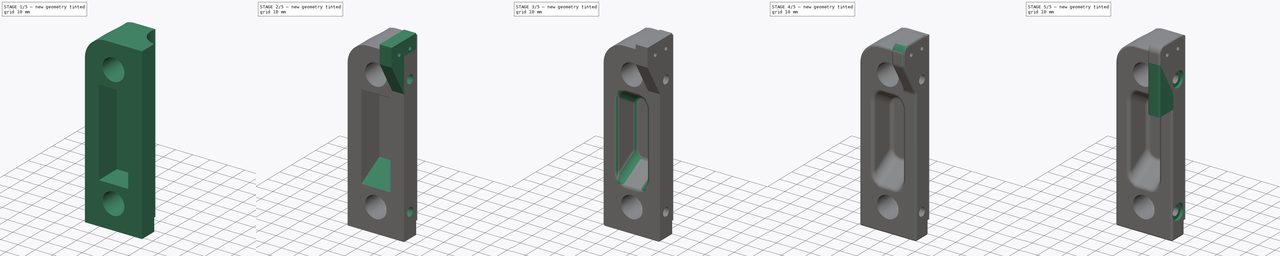
[diagram: build sequence overview — one tinted view per stage of 5, left to right]
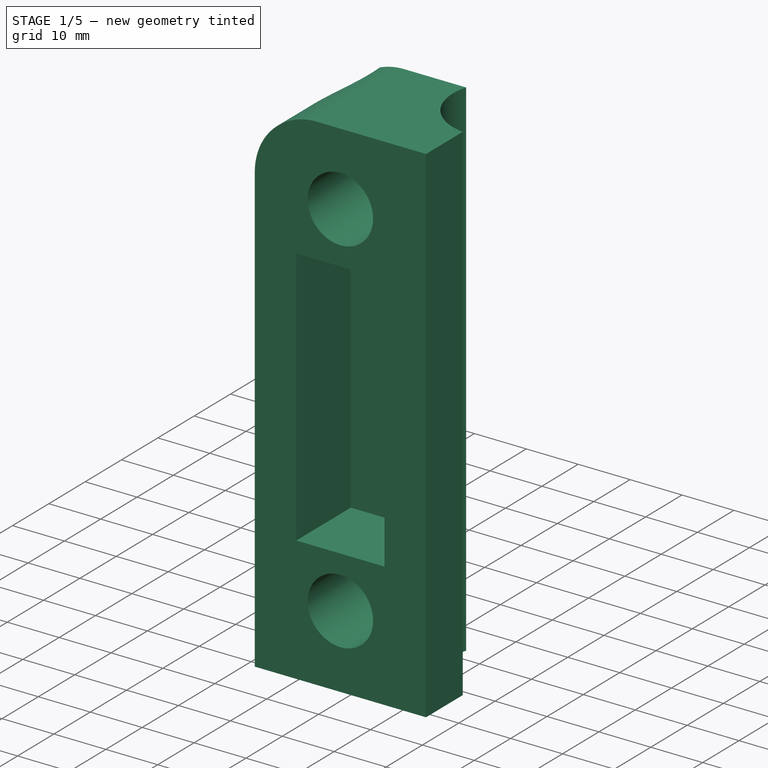
[diagram: stage 1 of 5 — iso view after this stage's code; geometry added in this stage tinted green]
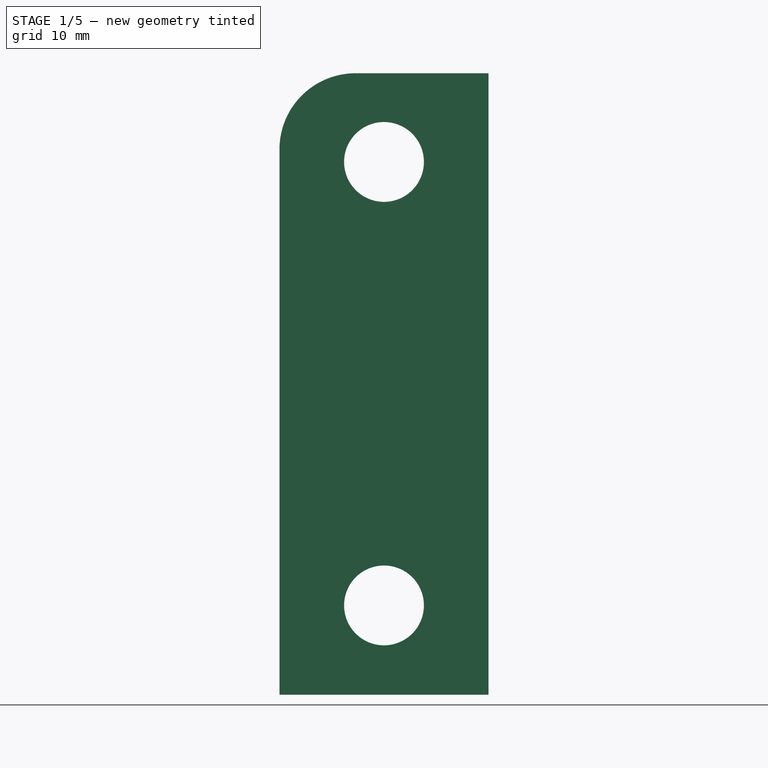
[diagram: stage 1 of 5 — front view after this stage's code; geometry added in this stage tinted green]
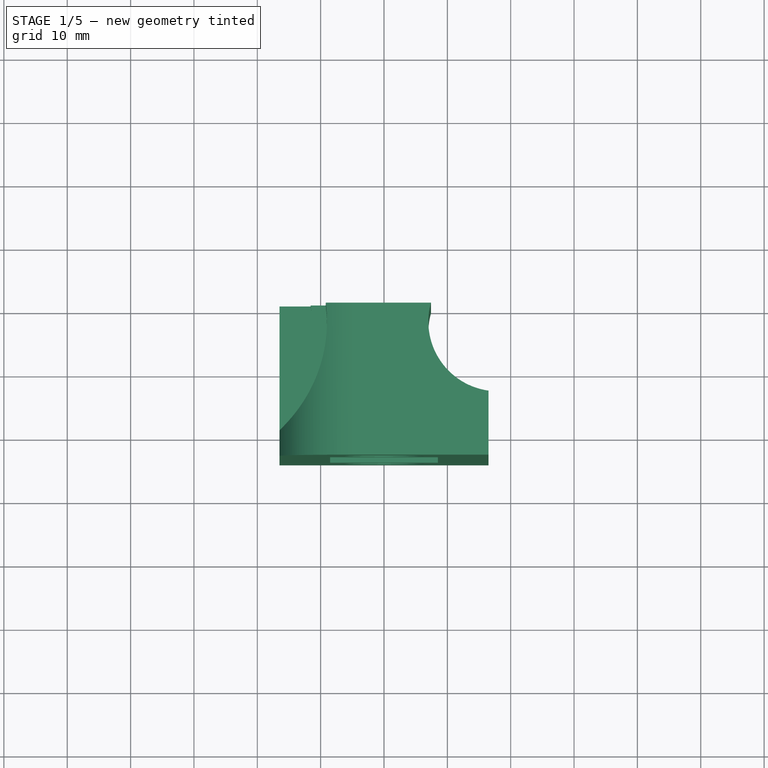
[diagram: stage 1 of 5 — top view after this stage's code; geometry added in this stage tinted green]
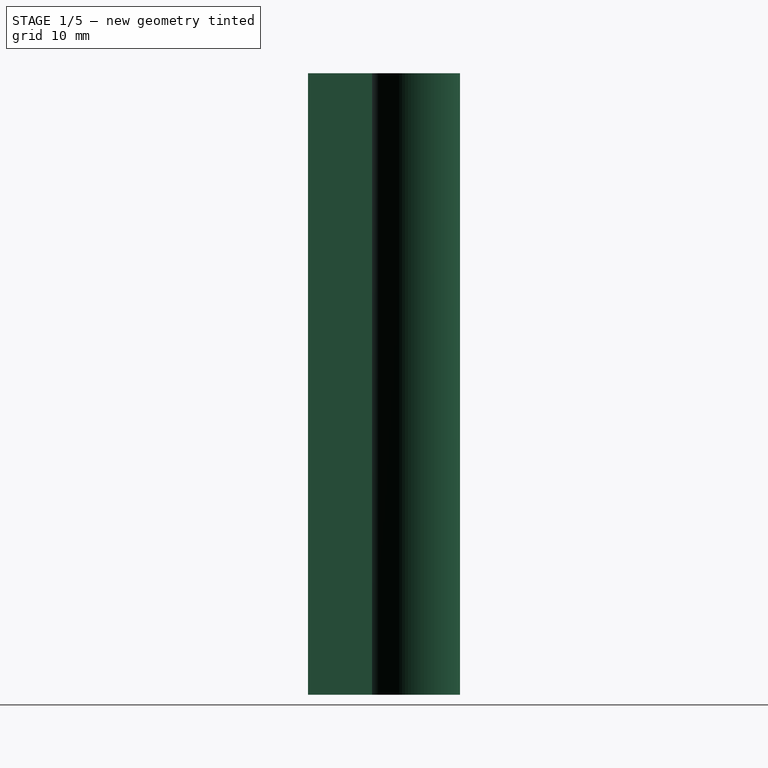
[diagram: stage 1 of 5 — right view after this stage's code; geometry added in this stage tinted green]
FCSTD DOCUMENT  (FreeCAD 0.16R6721 (Git))
Label: carriage_motor_z
License: All rights reserved
LicenseURL: http://en.wikipedia.org/wiki/All_rights_reserved
objects: Sketcher::SketchObject×16, PartDesign::Fillet×11, PartDesign::Pocket×8, PartDesign::Pad×5
note: 53 computed .brp shape members not serialized (recipe doc carries the construction recipe); baked Part::Feature solids carry a one-line shape summary decoded from their .brp

FEATURE [Sketcher::SketchObject] Sketch
  Placement = pos=(0,0,0) rot=(1,0,0;1.5708rad)
  sketch-geometry (9):
    g0: LineSegment [constr] StartX=-105 StartY=0 StartZ=0 EndX=105 EndY=0 EndZ=0
    g1: LineSegment [constr] StartX=0 StartY=40 StartZ=0 EndX=0 EndY=-30 EndZ=0
    g2: Circle CenterX=0 CenterY=40 CenterZ=0 NormalX=0 NormalY=0 NormalZ=1 Radius=6.3
    g3: Circle CenterX=0 CenterY=-30 CenterZ=0 NormalX=0 NormalY=0 NormalZ=1 Radius=6.3
    g4: LineSegment StartX=-4.49629 StartY=54 StartZ=0 EndX=16.5 EndY=54 EndZ=0
    g5: LineSegment StartX=16.5 StartY=54 StartZ=0 EndX=16.5 EndY=-44.1 EndZ=0
    g6: LineSegment StartX=16.5 StartY=-44.1 StartZ=0 EndX=-16.5 EndY=-44.1 EndZ=0
    g7: LineSegment StartX=-16.5 StartY=-44.1 StartZ=0 EndX=-16.5 EndY=41.9963 EndZ=0
    g8: ArcOfCircle CenterX=-4.49629 CenterY=41.9963 CenterZ=0 NormalX=0 NormalY=0 NormalZ=1 Radius=12.0037 StartAngle=1.5708 EndAngle=3.14159
  constraints (25):
    c: Horizontal(g0)
    c: Vertical(g1)
    c: PointOnObject(g-1,g1)
    c: PointOnObject(g-1,g0)
    c: DistanceY(g1) = -70
    c: DistanceY(g-1,g1) = -30
    c: Coincident(g1,g2)
    c: Coincident(g1,g3)
    c: Radius(g2) = 6.3
    c: Equal(g3,g2)
    c: Horizontal(g4)
    c: Horizontal(g6)
    c: Vertical(g5)
    c: Vertical(g7)
    c: Distance(g0) = 210
    c: DistanceX(g-1,g0) = -105
    c: Tangent(g4,g8) = 1.5708
    c: Tangent(g7,g8) = 1.5708
    c: DistanceX(g1,g5) = 16.5
    c: DistanceX(g5,g7) = -33
    c: DistanceY(g-1,g4) = 54
    c: DistanceY(g1,g6) = -14.1
    c: Coincident(g5,g6)
    c: Coincident(g6,g7)
    c: Coincident(g4,g5)
FEATURE [PartDesign::Pad] Pad
  Length = 24
  Length2 = 100
  Placement = pos=(0,0,0) rot=(1,0,0;1.5708rad)
  Sketch = -> Sketch
  Type = 0
FEATURE [Sketcher::SketchObject] Sketch001
  Placement = pos=(0,-24,0) rot=(1,0,0;1.5708rad)
  Support = -> Pad [Face9]
  sketch-geometry (6):
    g0: LineSegment StartX=-8.5 StartY=-20 StartZ=0 EndX=-8.5 EndY=30 EndZ=0
    g1: LineSegment StartX=8.5 StartY=30 StartZ=0 EndX=8.5 EndY=-20 EndZ=0
    g2: LineSegment StartX=-8.5 StartY=-20 StartZ=0 EndX=8.5 EndY=-20 EndZ=0
    g3: LineSegment [constr] StartX=-35 StartY=40 StartZ=0 EndX=35 EndY=40 EndZ=0
    g4: LineSegment [constr] StartX=-35 StartY=-30 StartZ=0 EndX=35 EndY=-30 EndZ=0
    g5: LineSegment StartX=-8.5 StartY=30 StartZ=0 EndX=8.5 EndY=30 EndZ=0
  constraints (20):
    c: Vertical(g0)
    c: Distance(g-1,g0) = 8.5
    c: Horizontal(g2)
    c: Horizontal(g3)
    c: DistanceY(g-1,g3) = 40
    c: DistanceX(g-1,g3) = -35
    c: DistanceX(g3) = 70
    c: Horizontal(g4)
    c: DistanceY(g-1,g4) = -30
    c: DistanceX(g-1,g4) = 35
    c: DistanceX(g4) = 70
    c: Vertical(g1)
    c: Horizontal(g5)
    c: DistanceX(g0,g1) = 17
    c: DistanceY(g3,g5) = -10
    c: DistanceY(g4,g2) = 10
    c: Coincident(g0,g5)
    c: Coincident(g1,g5)
    c: Coincident(g1,g2)
    c: Coincident(g0,g2)
FEATURE [Sketcher::SketchObject] Sketch008
  Placement = pos=(0,0,62.5) rot=(0,0,1;3.14159rad)
  sketch-geometry (3):
    g0: LineSegment [constr] StartX=56.2 StartY=28.8972 StartZ=0 EndX=56.2 EndY=19.8972 EndZ=0
    g1: Circle CenterX=56.2 CenterY=28.8972 CenterZ=0 NormalX=0 NormalY=0 NormalZ=1 Radius=1.2
    g2: Circle CenterX=56.2 CenterY=19.8972 CenterZ=0 NormalX=0 NormalY=0 NormalZ=1 Radius=1.2
  constraints (6):
    c: Vertical(g0)
    c: DistanceY(g0) = -9
    c: Coincident(g0,g2)
    c: Coincident(g0,g1)
    c: Radius(g1) = 1.2
    c: Equal(g1,g2)
FEATURE [PartDesign::Pocket] Pocket
  Length = 15
  Placement = pos=(0,0,0) rot=(1,0,0;1.5708rad)
  Sketch = -> Sketch001
  Type = 0
FEATURE [Sketcher::SketchObject] Sketch002
  Placement = pos=(0,0,54) rot=(0,0,1;3.14159rad)
  Support = -> Pocket [Face1]
  sketch-geometry (1):
    g0: Circle CenterX=-18 CenterY=3 CenterZ=0 NormalX=0 NormalY=0 NormalZ=1 Radius=11
  constraints (3):
    c: DistanceX(g-1,g0) = -18
    c: Radius(g0) = 11
    c: DistanceY(g-1,g0) = 3
FEATURE [PartDesign::Pocket] Pocket001
  Length = 5
  Placement = pos=(0,0,0) rot=(1,0,0;1.5708rad)
  Sketch = -> Sketch002
  Type = 1
FEATURE [Sketcher::SketchObject] Sketch003
  Placement = pos=(0,0,54) rot=(0,0,1;3.14159rad)
  Support = -> Pocket001 [Face1]
  sketch-geometry (2):
    g0: Circle CenterX=32 CenterY=3 CenterZ=0 NormalX=0 NormalY=0 NormalZ=1 Radius=23
    g1: LineSegment StartX=0 StartY=0 StartZ=0 EndX=0 EndY=90.0562 EndZ=0
  constraints (5):
    c: Vertical(g1)
    c: Coincident(g1,g-1)
    c: DistanceY(g-1,g0) = 3
    c: DistanceX(g-1,g0) = 32
    c: Radius(g0) = 23
FEATURE [PartDesign::Pocket] Pocket002
  Length = 26
  Placement = pos=(0,0,0) rot=(1,0,0;1.5708rad)
  Sketch = -> Sketch003
  Type = 0
FEATURE [Sketcher::SketchObject] Sketch004
  Placement = pos=(0,0,28) rot=(0,0,1;3.14159rad)
  Support = -> Pocket002 [Face10]
  sketch-geometry (1):
    g0: Circle CenterX=18 CenterY=1 CenterZ=0 NormalX=0 NormalY=0 NormalZ=1 Radius=6.5
  constraints (3):
    c: Radius(g0) = 6.5
    c: DistanceX(g-1,g0) = 18
    c: DistanceY(g-1,g0) = 1
FEATURE [PartDesign::Pocket] Pocket003
  Length = 10
  Placement = pos=(0,0,0) rot=(1,0,0;1.5708rad)
  Sketch = -> Sketch004
  Type = 0
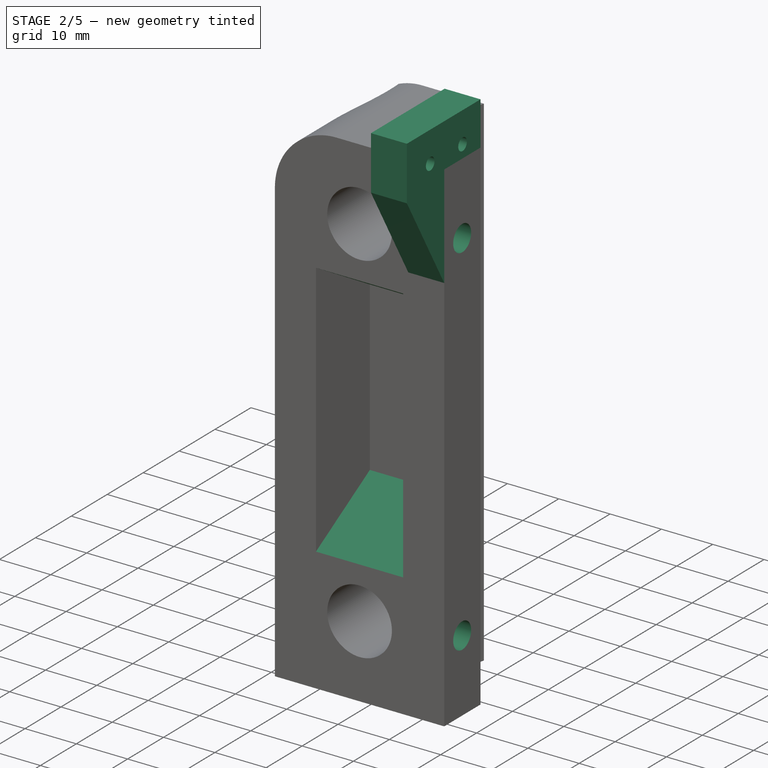
[diagram: stage 2 of 5 — iso view after this stage's code; geometry added in this stage tinted green]
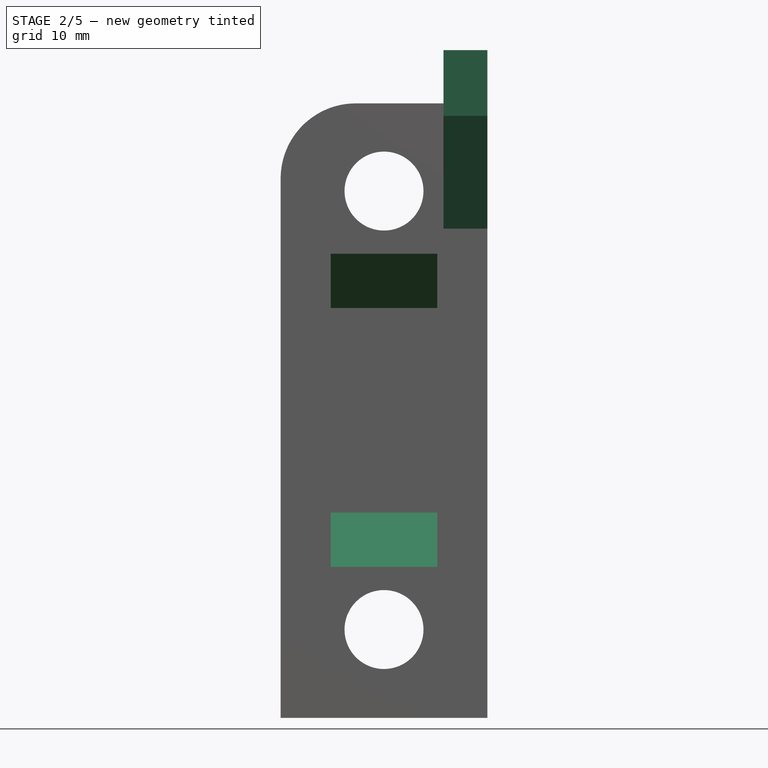
[diagram: stage 2 of 5 — front view after this stage's code; geometry added in this stage tinted green]
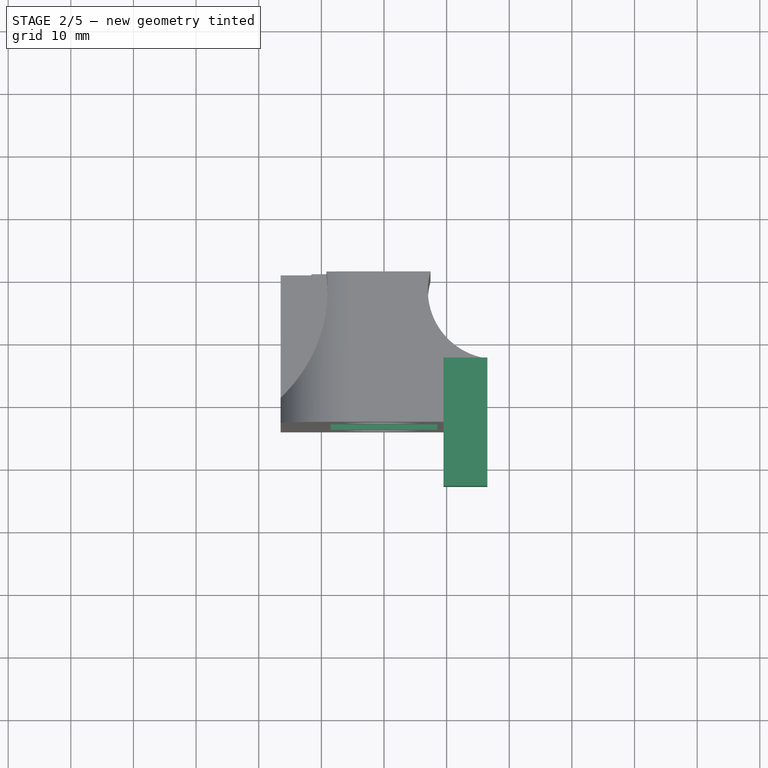
[diagram: stage 2 of 5 — top view after this stage's code; geometry added in this stage tinted green]
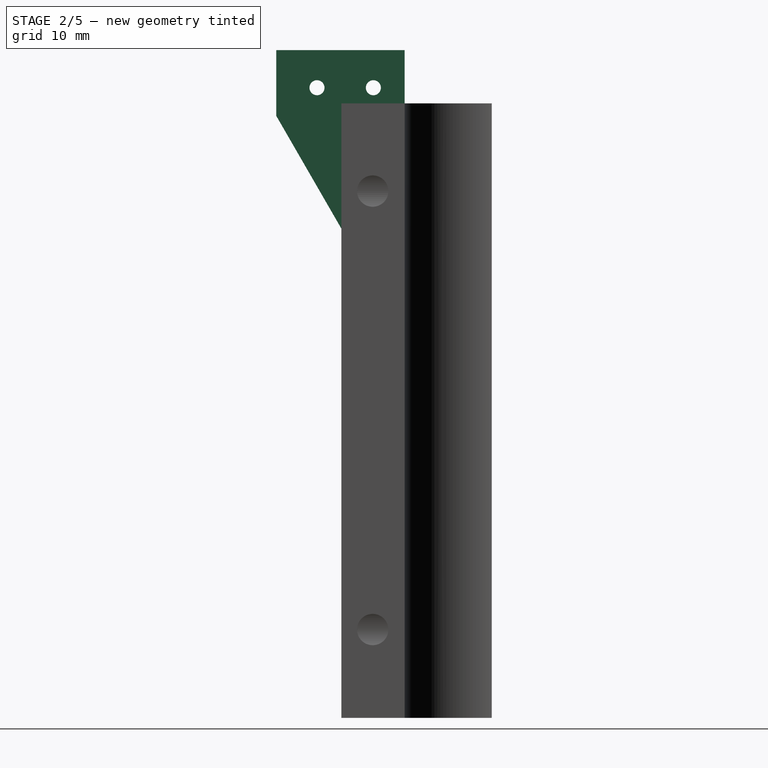
[diagram: stage 2 of 5 — right view after this stage's code; geometry added in this stage tinted green]
FEATURE [Sketcher::SketchObject] Sketch011
  Placement = pos=(16.5,0,0) rot=(0.707107,0,0.707107;3.14159rad)
  Support = -> Pocket003 [Face5]
  sketch-geometry (5):
    g0: LineSegment StartX=52.0086 StartY=34.3972 StartZ=0 EndX=62.5 EndY=34.3972 EndZ=0
    g1: LineSegment StartX=62.5 StartY=34.3972 StartZ=0 EndX=62.5 EndY=13.8972 EndZ=0
    g2: LineSegment StartX=62.5 StartY=13.8972 StartZ=0 EndX=34 EndY=13.8972 EndZ=0
    g3: LineSegment StartX=34 StartY=24 StartZ=0 EndX=34 EndY=13.8972 EndZ=0
    g4: LineSegment StartX=52.0086 StartY=34.3972 StartZ=0 EndX=34 EndY=24 EndZ=0
  constraints (5):
    c: Coincident(g0,g1)
    c: Coincident(g0,g4)
    c: Coincident(g1,g2)
    c: Coincident(g2,g3)
    c: Coincident(g3,g4)
FEATURE [PartDesign::Pad] Pad001
  Length = 7
  Length2 = 100
  Placement = pos=(0,0,0) rot=(1,0,0;1.5708rad)
  Reversed = true
  Sketch = -> Sketch011
  Type = 0
FEATURE [Sketcher::SketchObject] Sketch013
  ExternalGeometry = -> [Pad001]
  Placement = pos=(16.5,0,0) rot=(0.707107,0,0.707107;3.14159rad)
  Support = -> Pad001 [Face19]
  sketch-geometry (3):
    g0: LineSegment [constr] StartX=56.5 StartY=27.8972 StartZ=0 EndX=56.5 EndY=18.8972 EndZ=0
    g1: Circle CenterX=56.5 CenterY=27.8972 CenterZ=0 NormalX=0 NormalY=0 NormalZ=1 Radius=1.2
    g2: Circle CenterX=56.5 CenterY=18.8972 CenterZ=0 NormalX=0 NormalY=0 NormalZ=1 Radius=1.2
FEATURE [PartDesign::Pocket] Pocket004
  Length = 9
  Placement = pos=(0,0,0) rot=(1,0,0;1.5708rad)
  Sketch = -> Sketch013
  Type = 0
FEATURE [Sketcher::SketchObject] Sketch014
  Placement = pos=(16.5,0,0) rot=(0.707107,0,0.707107;3.14159rad)
  Support = -> Pocket004 [Face17]
  sketch-geometry (3):
    g0: LineSegment [constr] StartX=-30 StartY=19 StartZ=0 EndX=40 EndY=19 EndZ=0
    g1: Circle CenterX=-30 CenterY=19 CenterZ=0 NormalX=0 NormalY=0 NormalZ=1 Radius=2.5
    g2: Circle CenterX=40 CenterY=19 CenterZ=0 NormalX=0 NormalY=0 NormalZ=1 Radius=2.5
  constraints (8):
    c: Horizontal(g0)
    c: Radius(g2) = 2.5
    c: Equal(g1,g2)
    c: Coincident(g0,g2)
    c: Coincident(g0,g1)
    c: DistanceX(g-1,g0) = -30
    c: DistanceX(g0) = 70
    c: DistanceY(g-1,g0) = 19
FEATURE [PartDesign::Pocket] Pocket005
  Length = 12
  Placement = pos=(0,0,0) rot=(1,0,0;1.5708rad)
  Sketch = -> Sketch014
  Type = 0
FEATURE [Sketcher::SketchObject] Sketch017
  ExternalGeometry = -> [Pocket005]
  Placement = pos=(-8.5,0,0) rot=(0.707107,0,0.707107;3.14159rad)
  Support = -> Pocket005 [Face28]
  sketch-geometry (6):
    g0: LineSegment StartX=-20 StartY=24 StartZ=0 EndX=-10.7624 EndY=8 EndZ=0
    g1: LineSegment StartX=-10.7624 StartY=8 StartZ=0 EndX=-20 EndY=8 EndZ=0
    g2: LineSegment StartX=-20 StartY=8 StartZ=0 EndX=-20 EndY=24 EndZ=0
    g3: LineSegment StartX=30 StartY=24 StartZ=0 EndX=20.7624 EndY=8 EndZ=0
    g4: LineSegment StartX=20.7624 StartY=8 StartZ=0 EndX=30 EndY=8 EndZ=0
    g5: LineSegment StartX=30 StartY=8 StartZ=0 EndX=30 EndY=24 EndZ=0
  constraints (16):
    c: Coincident(g0,g-6)
    c: Coincident(g3,g-5)
    c: Vertical(g5)
    c: Horizontal(g4)
    c: Coincident(g4,g5)
    c: Angle(g3,g5) = 0.523599
    c: Coincident(g3,g4)
    c: DistanceY(g5) = 16
    c: Coincident(g0,g2)
    c: Vertical(g2)
    c: Angle(g2,g0) = 0.523599
    c: Horizontal(g1)
    c: Coincident(g1,g2)
    c: Coincident(g0,g1)
    c: DistanceY(g2) = 16
    c: Coincident(g5,g3)
FEATURE [PartDesign::Pad] Pad002
  Length = 10
  Length2 = 100
  Placement = pos=(0,0,0) rot=(1,0,0;1.5708rad)
  Sketch = -> Sketch017
  Type = 3
  UpToFace = -> Pocket005 [Face29]
FEATURE [Sketcher::SketchObject] Sketch018
  ExternalGeometry = -> [Pad002]
  Placement = pos=(0,0,54) rot=(0,0,1;3.14159rad)
  Support = -> Pad002 [Face2]
  sketch-geometry (1):
    g0: Circle CenterX=-18 CenterY=3 CenterZ=0 NormalX=0 NormalY=0 NormalZ=1 Radius=11
  constraints (2):
    c: Coincident(g0,g-3)
    c: Equal(g0,g-3)
FEATURE [PartDesign::Pocket] Pocket006
  Length = 5
  Placement = pos=(0,0,0) rot=(1,0,0;1.5708rad)
  Sketch = -> Sketch018
  Type = 1
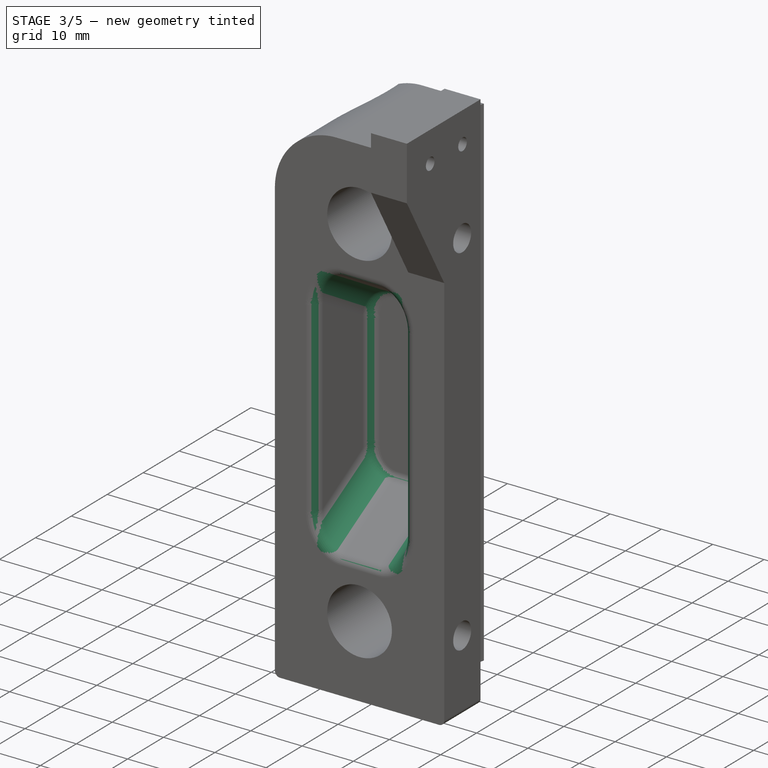
[diagram: stage 3 of 5 — iso view after this stage's code; geometry added in this stage tinted green]
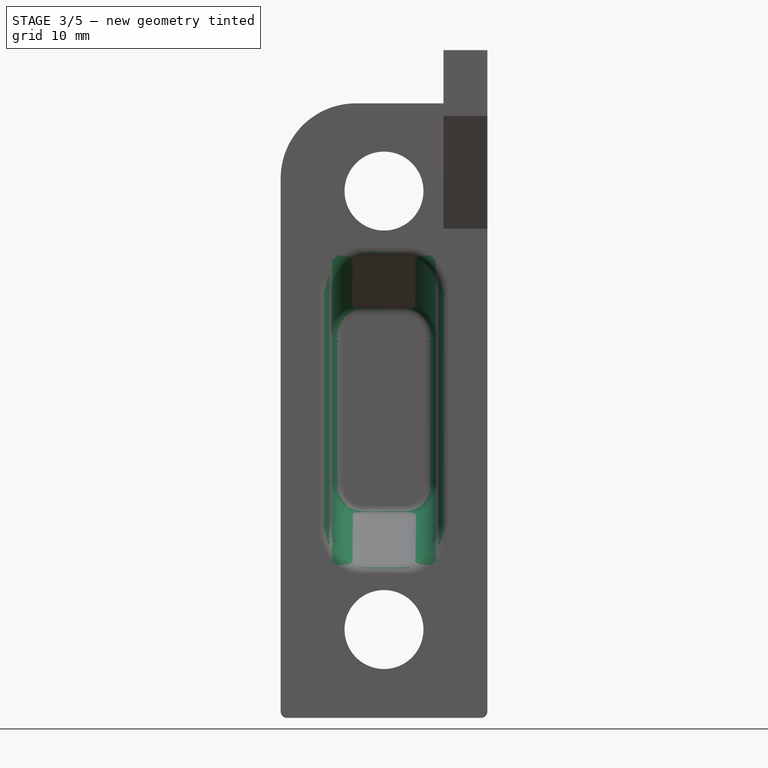
[diagram: stage 3 of 5 — front view after this stage's code; geometry added in this stage tinted green]
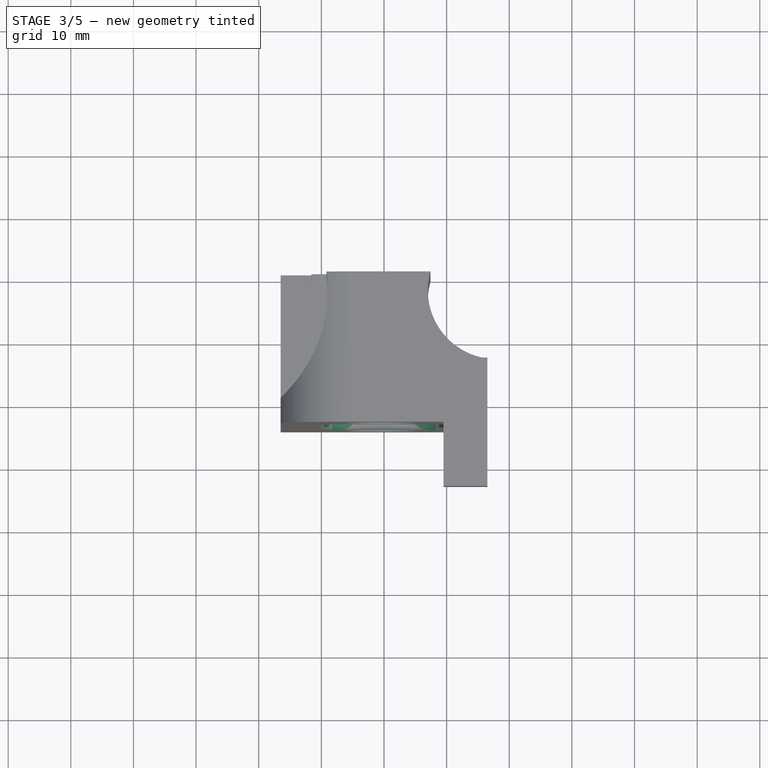
[diagram: stage 3 of 5 — top view after this stage's code; geometry added in this stage tinted green]
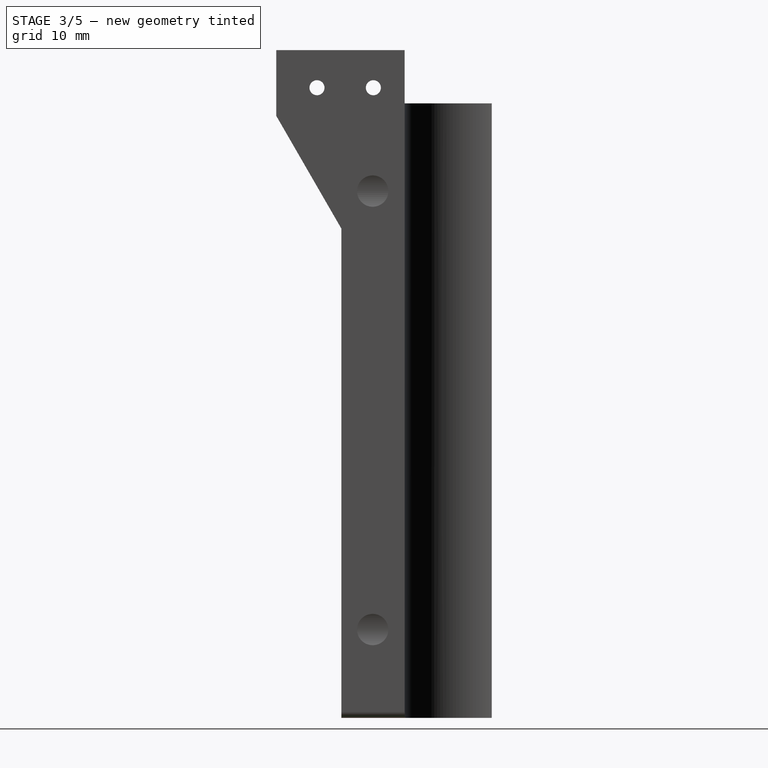
[diagram: stage 3 of 5 — right view after this stage's code; geometry added in this stage tinted green]
FEATURE [PartDesign::Fillet] Fillet
  Base = -> Pocket006 [Edge80,Edge82,Edge86,Edge83]
  Placement = pos=(0,0,0) rot=(1,0,0;1.5708rad)
  Radius = 5
FEATURE [PartDesign::Fillet] Fillet001
  Base = -> Fillet [Edge26,Edge22,Edge30,Edge18,Edge33,Edge23,Edge31,Edge28]
  Placement = pos=(0,0,0) rot=(1,0,0;1.5708rad)
  Radius = 2
FEATURE [PartDesign::Fillet] Fillet002
  Base = -> Fillet001 [Edge11,Edge3,Edge6,Edge13,Edge15,Edge16,Edge14,Edge12]
  Placement = pos=(0,0,0) rot=(1,0,0;1.5708rad)
  Radius = 2
FEATURE [PartDesign::Fillet] Fillet003
  Base = -> Fillet002 [Edge91,Edge96]
  Placement = pos=(0,0,0) rot=(1,0,0;1.5708rad)
  Radius = 1
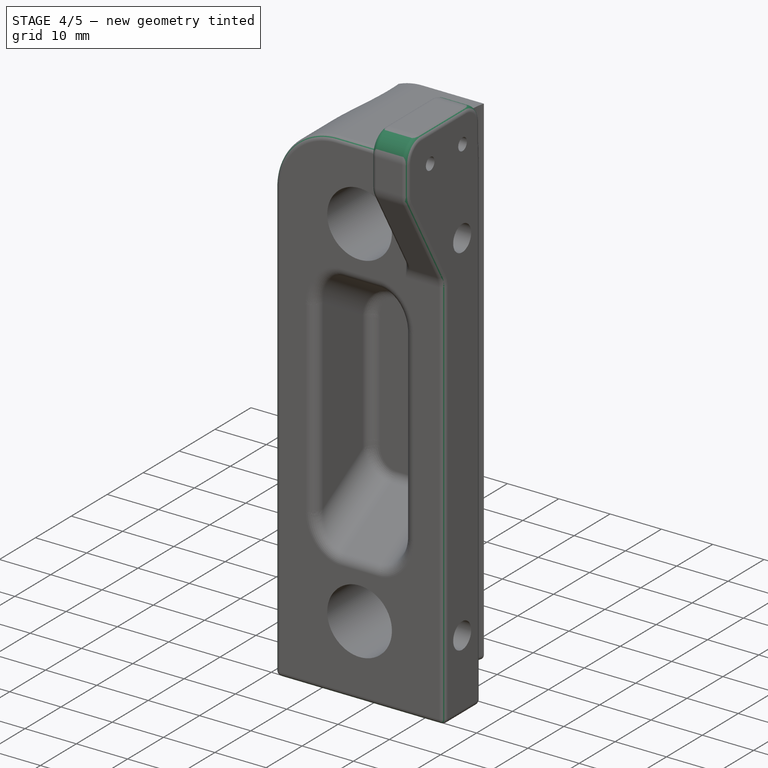
[diagram: stage 4 of 5 — iso view after this stage's code; geometry added in this stage tinted green]
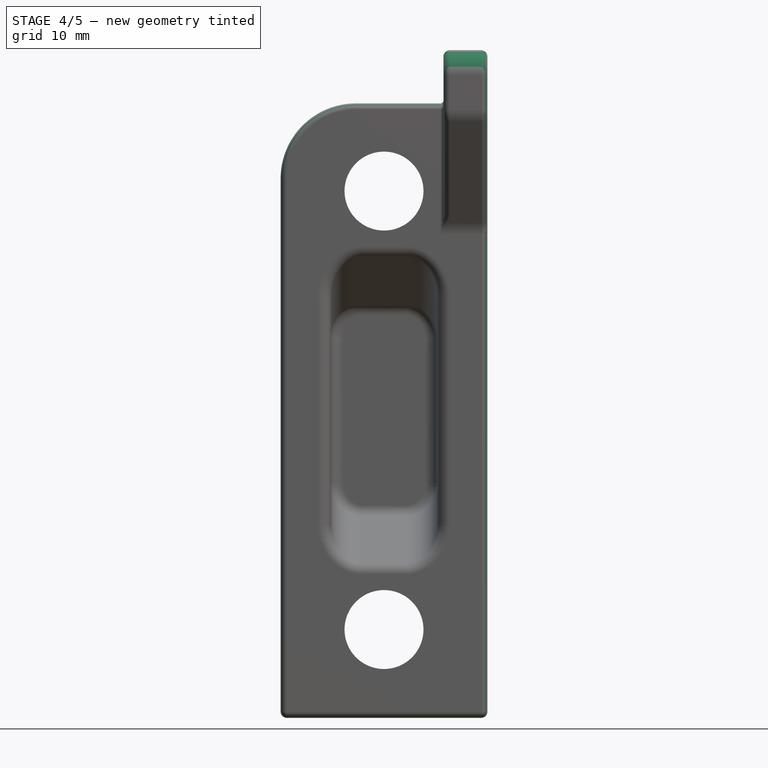
[diagram: stage 4 of 5 — front view after this stage's code; geometry added in this stage tinted green]
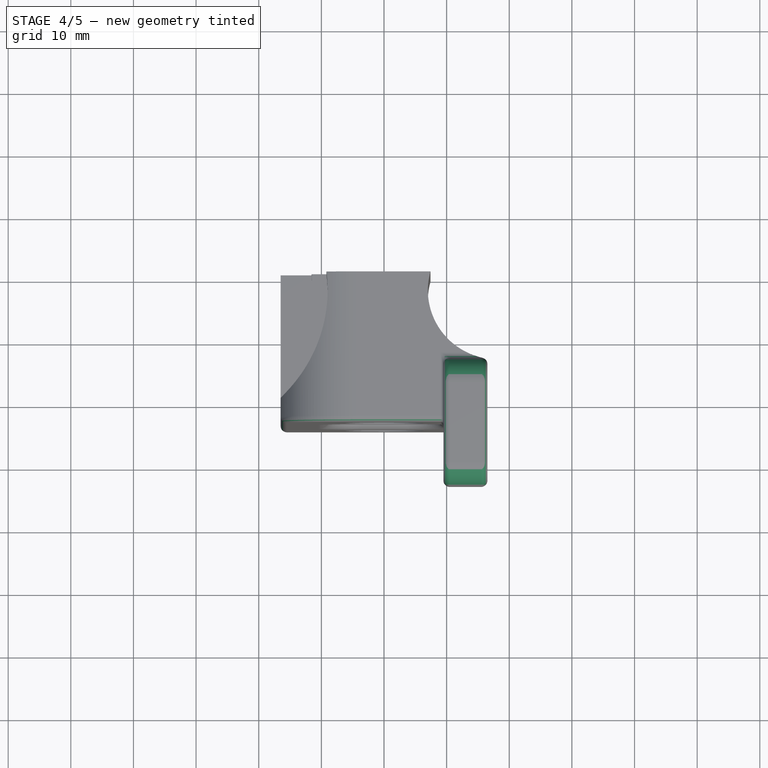
[diagram: stage 4 of 5 — top view after this stage's code; geometry added in this stage tinted green]
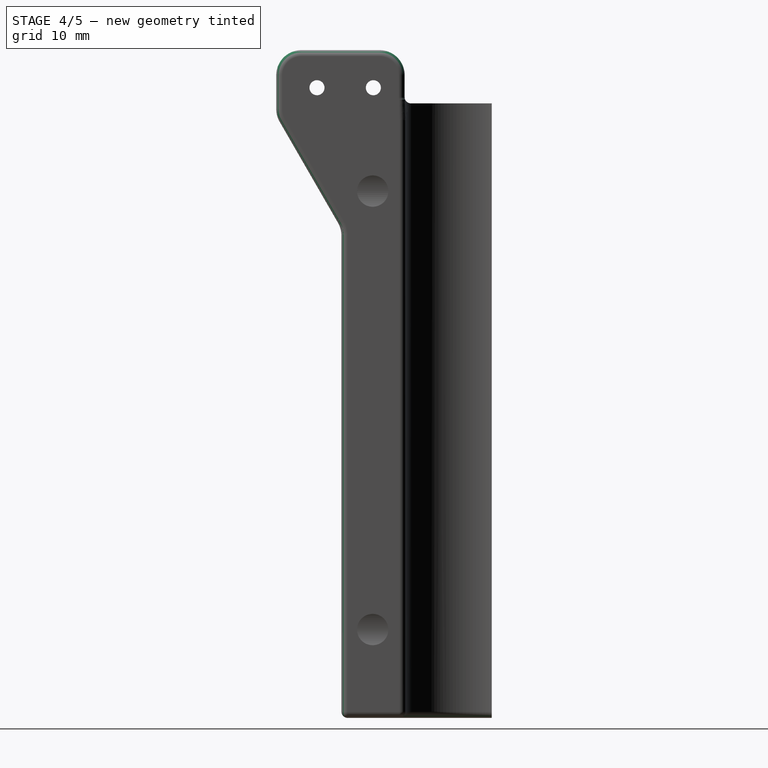
[diagram: stage 4 of 5 — right view after this stage's code; geometry added in this stage tinted green]
FEATURE [PartDesign::Fillet] Fillet004
  Base = -> Fillet003 [Edge102,Edge103,Edge53,Edge9]
  Placement = pos=(0,0,0) rot=(1,0,0;1.5708rad)
  Radius = 4
FEATURE [PartDesign::Fillet] Fillet005
  Base = -> Fillet004 [Edge51]
  Placement = pos=(0,0,0) rot=(1,0,0;1.5708rad)
  Radius = 1
FEATURE [PartDesign::Fillet] Fillet006
  Base = -> Fillet005 [Edge27,Edge38]
  Placement = pos=(0,0,0) rot=(1,0,0;1.5708rad)
  Radius = 1
FEATURE [PartDesign::Fillet] Fillet007
  Base = -> Fillet006 [Edge4]
  Placement = pos=(0,0,0) rot=(1,0,0;1.5708rad)
  Radius = 0.5
FEATURE [PartDesign::Fillet] Fillet008
  Base = -> Fillet007 [Edge7]
  Placement = pos=(0,0,0) rot=(1,0,0;1.5708rad)
  Radius = 1
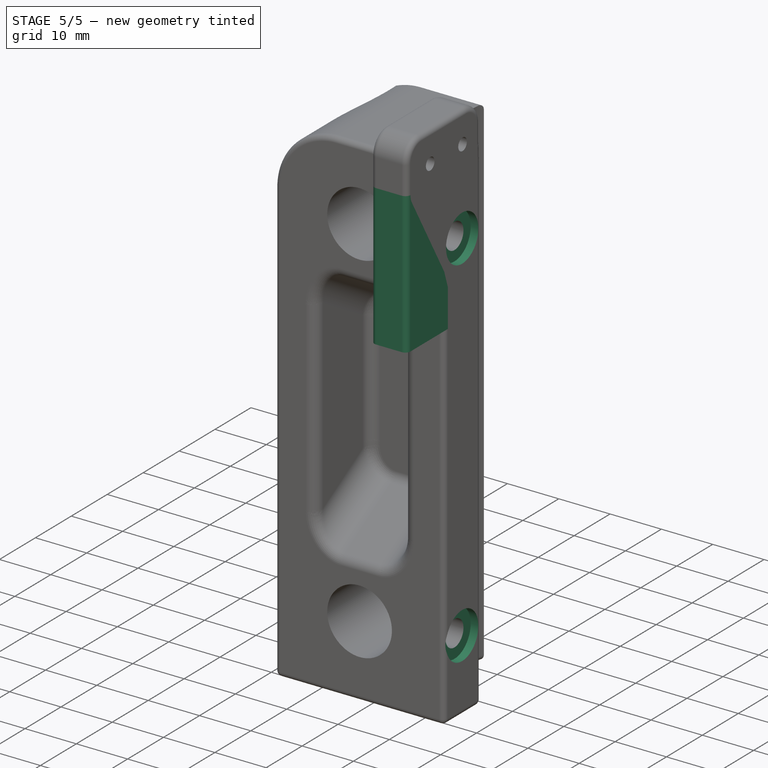
[diagram: stage 5 of 5 — iso view after this stage's code; geometry added in this stage tinted green]
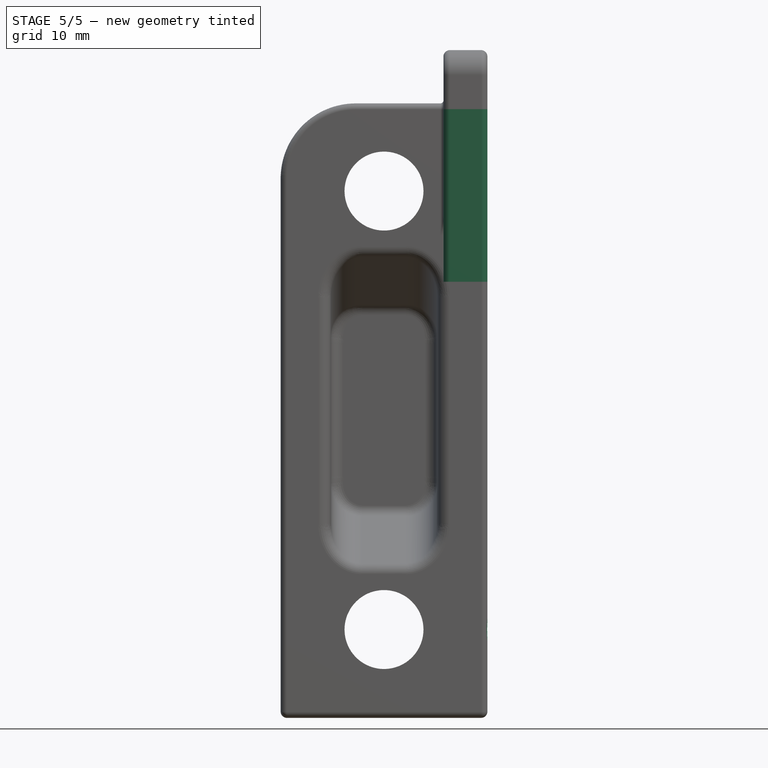
[diagram: stage 5 of 5 — front view after this stage's code; geometry added in this stage tinted green]
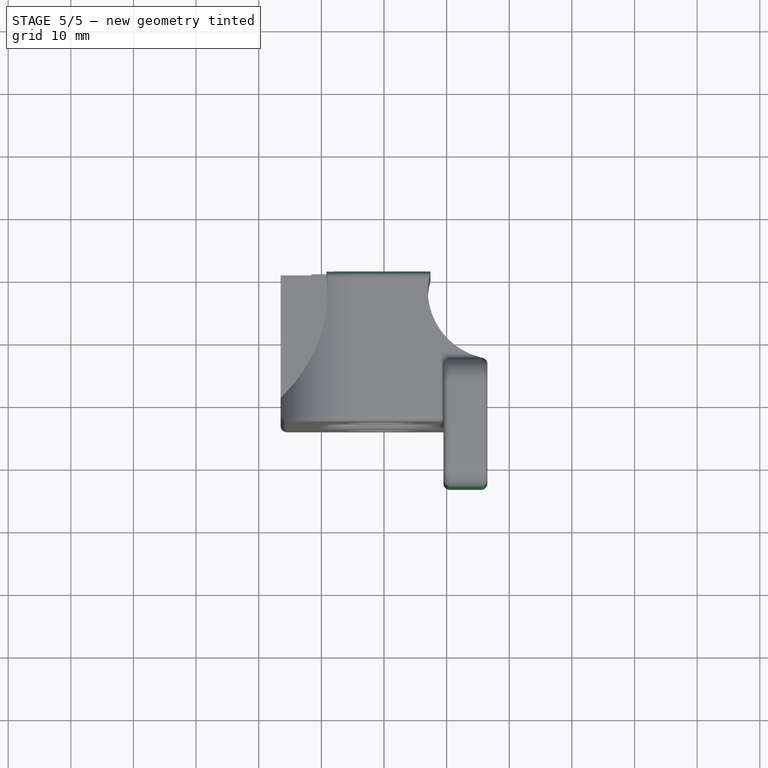
[diagram: stage 5 of 5 — top view after this stage's code; geometry added in this stage tinted green]
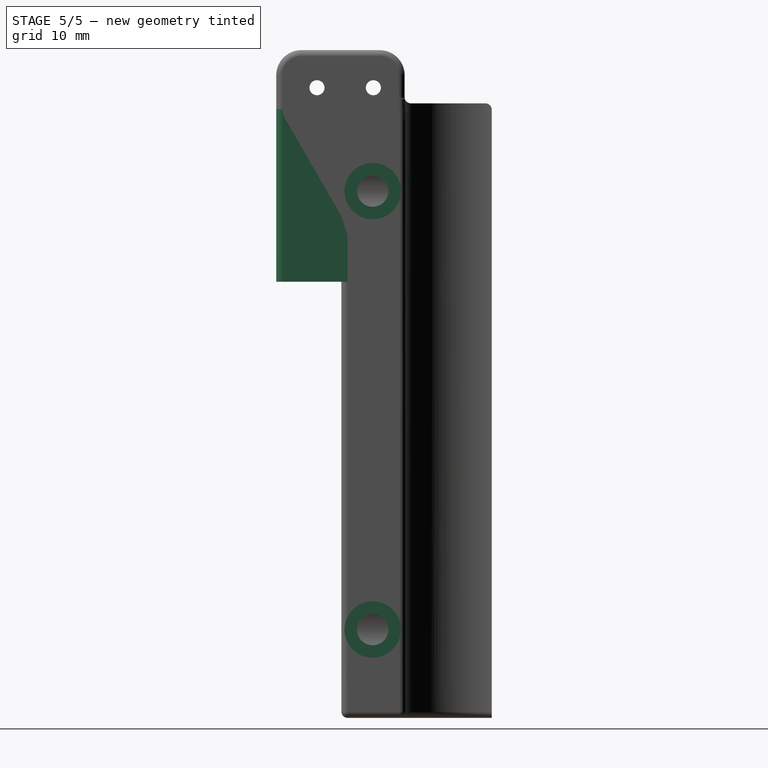
[diagram: stage 5 of 5 — right view after this stage's code; geometry added in this stage tinted green]
FEATURE [PartDesign::Fillet] Fillet009
  Base = -> Fillet008 [Edge115]
  Placement = pos=(0,0,0) rot=(1,0,0;1.5708rad)
  Radius = 1
FEATURE [Sketcher::SketchObject] Sketch019
  Placement = pos=(16.5,0,0) rot=(0.707107,0,0.707107;3.14159rad)
  sketch-geometry (2):
    g0: Circle CenterX=-30 CenterY=19 CenterZ=0 NormalX=0 NormalY=0 NormalZ=1 Radius=4.5
    g1: Circle CenterX=40 CenterY=19 CenterZ=0 NormalX=0 NormalY=0 NormalZ=1 Radius=4.5
  constraints (2):
    c: Radius(g0) = 4.5
    c: Equal(g0,g1)
FEATURE [Sketcher::SketchObject] Sketch020
  ExternalGeometry = -> [Fillet009]
  Placement = pos=(0,0,0) rot=(-1,0,0;1.5708rad)
  Support = -> Fillet009 [Face14]
  sketch-geometry (4):
    g0: LineSegment StartX=12.724 StartY=29.8879 StartZ=0 EndX=10.5 EndY=29.8879 EndZ=0
    g1: LineSegment StartX=10.5 StartY=29.8879 StartZ=0 EndX=10.5 EndY=-36.1123 EndZ=0
    g2: LineSegment StartX=10.5 StartY=-36.1123 StartZ=0 EndX=12.724 EndY=-36.1123 EndZ=0
    g3: LineSegment StartX=12.724 StartY=-36.1123 StartZ=0 EndX=12.724 EndY=29.8879 EndZ=0
  constraints (9):
    c: Coincident(g0,g1)
    c: Coincident(g0,g3)
    c: Coincident(g1,g2)
    c: Coincident(g2,g3)
    c: Horizontal(g2)
    c: Horizontal(g0)
    c: Vertical(g3)
    c: Vertical(g1)
    c: PointOnObject(g0,g-3)
FEATURE [Sketcher::SketchObject] Sketch021
  Placement = pos=(16.5,0,0) rot=(0.707107,0,0.707107;3.14159rad)
  sketch-geometry (1):
    g0: Circle CenterX=-30 CenterY=19 CenterZ=0 NormalX=0 NormalY=0 NormalZ=1 Radius=4.5
FEATURE [PartDesign::Pad] Pad003
  Length = 2
  Length2 = 100
  Placement = pos=(0,0,0) rot=(1,0,0;1.5708rad)
  Reversed = true
  Sketch = -> Sketch020
  Type = 0
FEATURE [Sketcher::SketchObject] Sketch027
  Placement = pos=(16.5,0,0) rot=(0.707107,0,0.707107;3.14159rad)
  Support = -> Pad003 [Face65]
  sketch-geometry (5):
    g0: LineSegment StartX=25.5292 StartY=22 StartZ=0 EndX=33.5686 EndY=22 EndZ=0
    g1: LineSegment StartX=53.0804 StartY=34.3972 StartZ=0 EndX=25.5292 EndY=34.3972 EndZ=0
    g2: LineSegment StartX=25.5292 StartY=34.3972 StartZ=0 EndX=25.5292 EndY=22 EndZ=0
    g3: LineSegment StartX=53.0804 StartY=33.2651 StartZ=0 EndX=33.5686 EndY=22 EndZ=0
    g4: LineSegment StartX=53.0804 StartY=34.3972 StartZ=0 EndX=53.0804 EndY=33.2651 EndZ=0
  constraints (5):
    c: Coincident(g0,g2)
    c: Coincident(g0,g3)
    c: Coincident(g1,g2)
    c: Coincident(g1,g4)
    c: Coincident(g3,g4)
FEATURE [PartDesign::Pad] Pad004
  Length = 7
  Length2 = 100
  Placement = pos=(0,0,0) rot=(1,0,0;1.5708rad)
  Reversed = true
  Sketch = -> Sketch027
  Type = 0
FEATURE [Sketcher::SketchObject] Sketch026
  ExternalGeometry = -> [Pad003]
  Placement = pos=(16.5,0,0) rot=(0.707107,0,0.707107;3.14159rad)
  Support = -> Pad004 [Face66]
  sketch-geometry (2):
    g0: Circle CenterX=-30 CenterY=19 CenterZ=0 NormalX=0 NormalY=0 NormalZ=1 Radius=4.5
    g1: Circle CenterX=40 CenterY=19 CenterZ=0 NormalX=0 NormalY=0 NormalZ=1 Radius=4.5
  constraints (2):
    c: Equal(g0,g1)
    c: Radius(g0) = 4.5
FEATURE [PartDesign::Pocket] Pocket007
  Length = 1.5
  Placement = pos=(0,0,0) rot=(1,0,0;1.5708rad)
  Sketch = -> Sketch026
  Type = 0
FEATURE [PartDesign::Fillet] Fillet010
  Base = -> Pocket007 [Edge156,Edge245]
  Placement = pos=(0,0,0) rot=(1,0,0;1.5708rad)
  Radius = 1
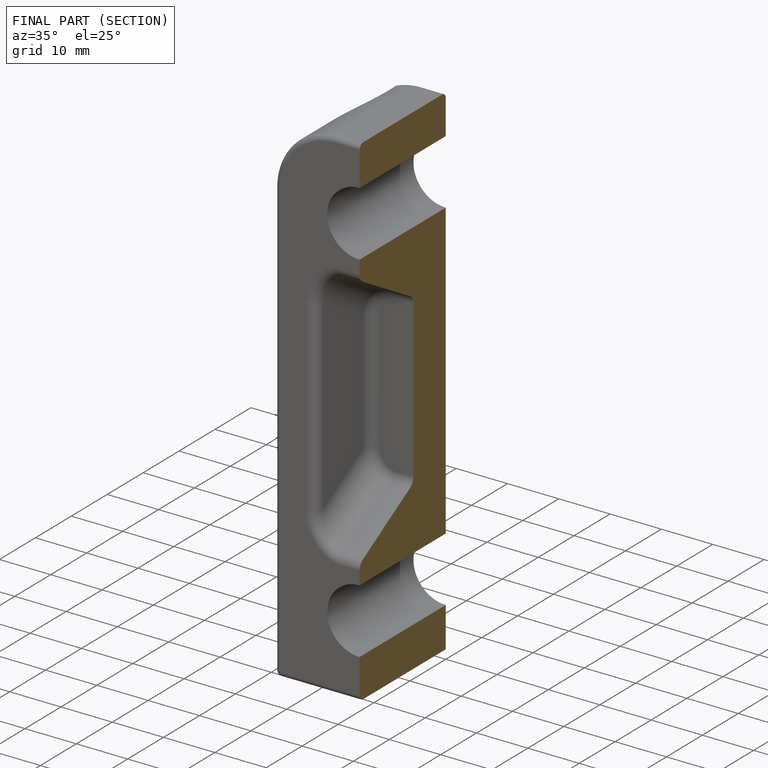
[diagram: finished part — half-section view (interior)]
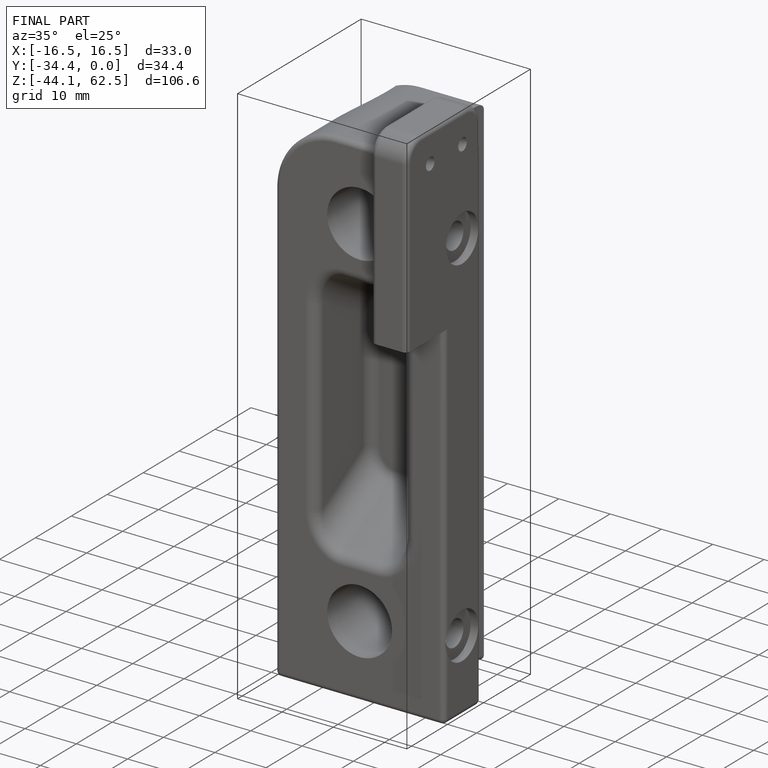
[diagram: finished part — iso view with bounding-box wireframe]
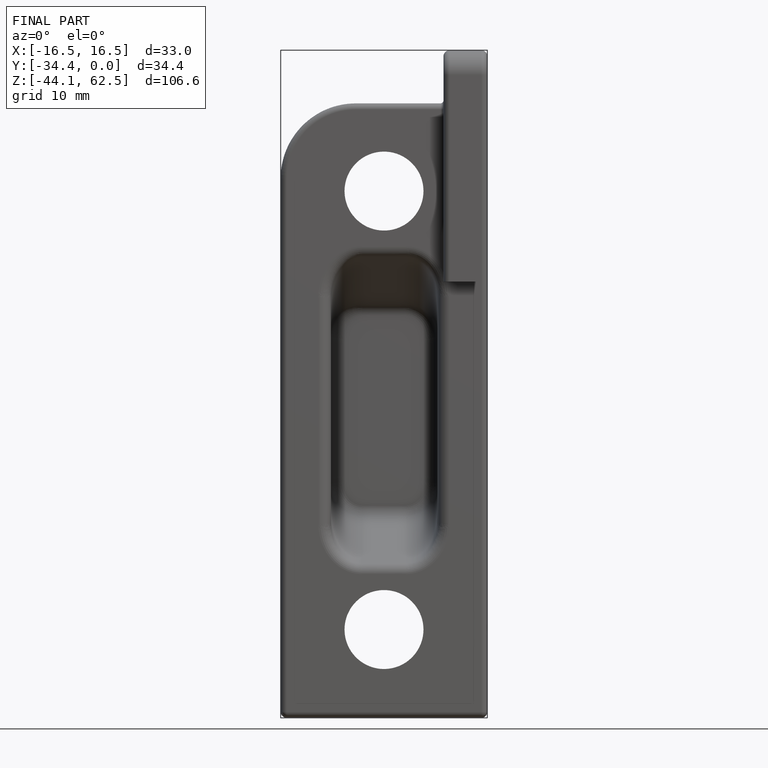
[diagram: finished part — front view with bounding-box wireframe]
